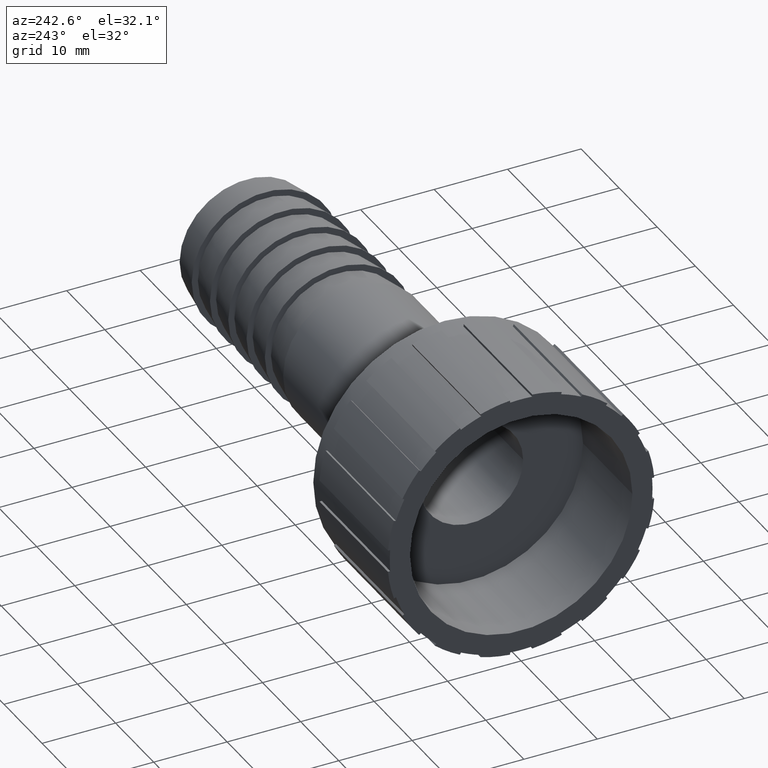
[diagram: clean part render]
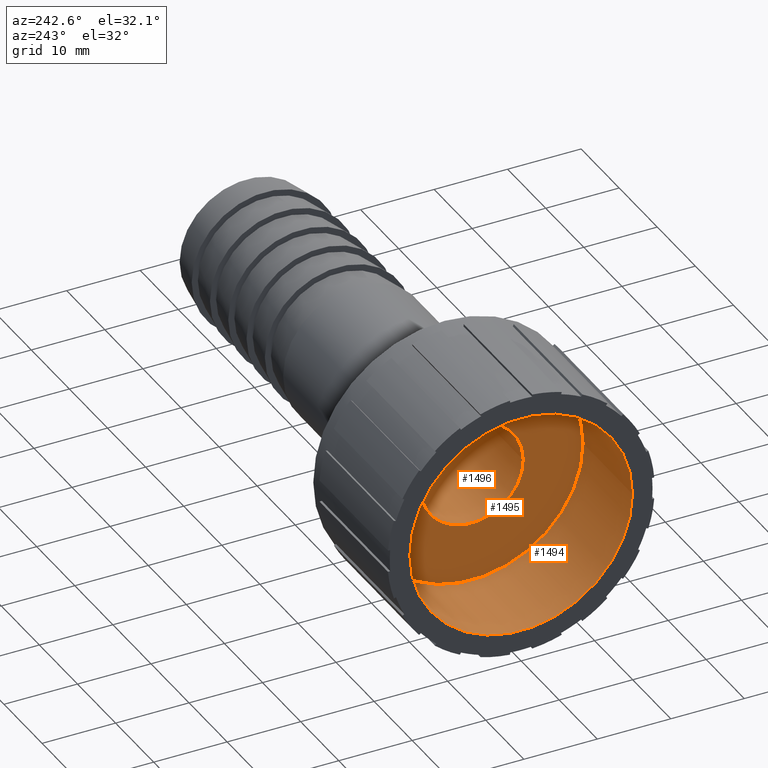
[diagram: same view with one multi-face feature highlighted, each face labeled with its STEP entity id]
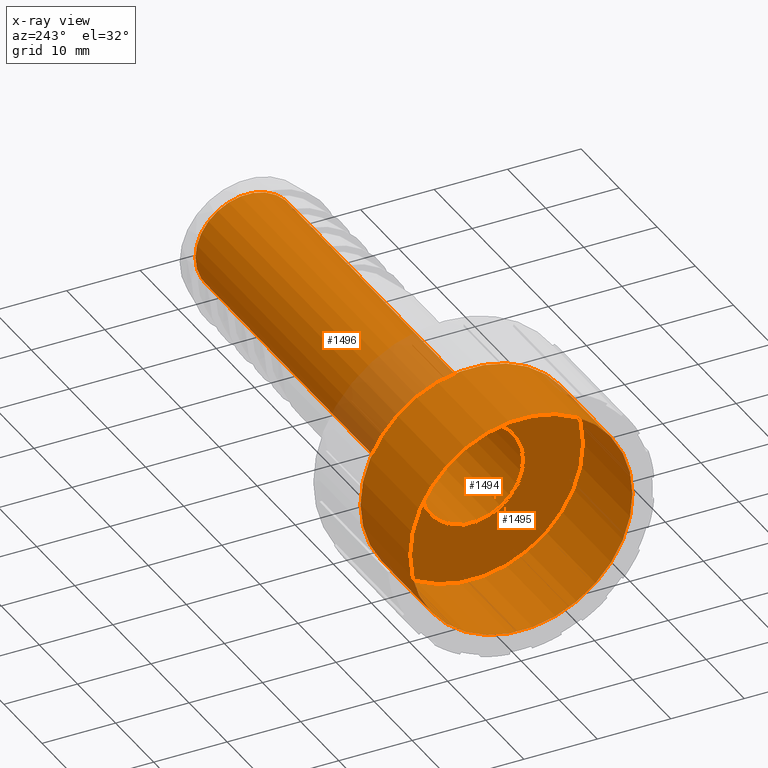
[diagram: x-ray of the same camera — body ghosted, the whole feature saturated]
A machine part, auxiliary view. The highlighted faces form ONE feature: a stepped (counterbored) hole: 2 coaxial cylindrical walls of radii 7 -> 15.1455 mm joined by 1 annular planar shoulder face(s). The faces share edges in the B-rep.
The next image is the same camera in x-ray: the body ghosted and the whole hole feature saturated, so the bore chain is visible through the body.
Their STEP definitions:
[1] entity #1494 (Cylinder):
#39=CYLINDRICAL_SURFACE('',#1648,15.1455);
#46=FACE_BOUND('',#302,.T.);
#94=CIRCLE('',#1575,15.1455);
#130=CIRCLE('',#1649,15.1455);
#213=FACE_OUTER_BOUND('',#301,.T.);
#301=EDGE_LOOP('',(#1337));
#302=EDGE_LOOP('',(#1338));
#713=VERTEX_POINT('',#2453);
#721=VERTEX_POINT('',#2541);
#890=EDGE_CURVE('',#713,#713,#94,.T.);
#932=EDGE_CURVE('',#721,#721,#130,.T.);
#1337=ORIENTED_EDGE('',*,*,#890,.T.);
#1338=ORIENTED_EDGE('',*,*,#932,.F.);
#1494=ADVANCED_FACE('',(#213,#46),#39,.F.);
#1575=AXIS2_PLACEMENT_3D('',#2454,#1929,#1930);
#1648=AXIS2_PLACEMENT_3D('',#2540,#2081,#2082);
#1649=AXIS2_PLACEMENT_3D('',#2542,#2083,#2084);
#1929=DIRECTION('center_axis',(-1.,0.,0.));
#1930=DIRECTION('ref_axis',(0.,0.,1.));
#2081=DIRECTION('center_axis',(-1.,0.,0.));
#2082=DIRECTION('ref_axis',(0.,-1.,0.));
#2083=DIRECTION('center_axis',(-1.,0.,0.));
#2084=DIRECTION('ref_axis',(0.,0.,1.));
#2453=CARTESIAN_POINT('',(0.,-15.1455,0.));
#2454=CARTESIAN_POINT('Origin',(0.,0.,0.));
#2540=CARTESIAN_POINT('Origin',(6.48,0.,0.));
#2541=CARTESIAN_POINT('',(12.96,-15.1455,0.));
#2542=CARTESIAN_POINT('Origin',(12.96,0.,0.));
[2] entity #1496 (Cylinder):
#40=CYLINDRICAL_SURFACE('',#1652,7.);
#48=FACE_BOUND('',#306,.T.);
#131=CIRCLE('',#1651,7.);
#132=CIRCLE('',#1653,7.);
#215=FACE_OUTER_BOUND('',#305,.T.);
#305=EDGE_LOOP('',(#1341));
#306=EDGE_LOOP('',(#1342));
#722=VERTEX_POINT('',#2544);
#723=VERTEX_POINT('',#2547);
#933=EDGE_CURVE('',#722,#722,#131,.T.);
#934=EDGE_CURVE('',#723,#723,#132,.T.);
#1341=ORIENTED_EDGE('',*,*,#933,.T.);
#1342=ORIENTED_EDGE('',*,*,#934,.F.);
#1496=ADVANCED_FACE('',(#215,#48),#40,.F.);
#1651=AXIS2_PLACEMENT_3D('',#2545,#2087,#2088);
#1652=AXIS2_PLACEMENT_3D('',#2546,#2089,#2090);
#1653=AXIS2_PLACEMENT_3D('',#2548,#2091,#2092);
#2087=DIRECTION('center_axis',(-1.,0.,0.));
#2088=DIRECTION('ref_axis',(0.,0.,1.));
#2089=DIRECTION('center_axis',(-1.,0.,0.));
#2090=DIRECTION('ref_axis',(0.,-1.,0.));
#2091=DIRECTION('center_axis',(-1.,0.,0.));
#2092=DIRECTION('ref_axis',(0.,0.,1.));
#2544=CARTESIAN_POINT('',(12.96,-7.,0.));
#2545=CARTESIAN_POINT('Origin',(12.96,0.,0.));
#2546=CARTESIAN_POINT('Origin',(42.48,0.,0.));
#2547=CARTESIAN_POINT('',(72.,-7.,0.));
#2548=CARTESIAN_POINT('Origin',(72.,0.,0.));
[3] entity #1495 (Plane):
#47=FACE_BOUND('',#304,.T.);
#130=CIRCLE('',#1649,15.1455);
#131=CIRCLE('',#1651,7.);
#214=FACE_OUTER_BOUND('',#303,.T.);
#303=EDGE_LOOP('',(#1339));
#304=EDGE_LOOP('',(#1340));
#721=VERTEX_POINT('',#2541);
#722=VERTEX_POINT('',#2544);
#932=EDGE_CURVE('',#721,#721,#130,.T.);
#933=EDGE_CURVE('',#722,#722,#131,.T.);
#1339=ORIENTED_EDGE('',*,*,#932,.T.);
#1340=ORIENTED_EDGE('',*,*,#933,.F.);
#1419=PLANE('',#1650);
#1495=ADVANCED_FACE('',(#214,#47),#1419,.T.);
#1649=AXIS2_PLACEMENT_3D('',#2542,#2083,#2084);
#1650=AXIS2_PLACEMENT_3D('',#2543,#2085,#2086);
#1651=AXIS2_PLACEMENT_3D('',#2545,#2087,#2088);
#2083=DIRECTION('center_axis',(-1.,0.,0.));
#2084=DIRECTION('ref_axis',(0.,0.,1.));
#2085=DIRECTION('center_axis',(-1.,0.,0.));
#2086=DIRECTION('ref_axis',(0.,0.,1.));
#2087=DIRECTION('center_axis',(-1.,0.,0.));
#2088=DIRECTION('ref_axis',(0.,0.,1.));
#2541=CARTESIAN_POINT('',(12.96,-15.1455,0.));
#2542=CARTESIAN_POINT('Origin',(12.96,0.,0.));
#2543=CARTESIAN_POINT('Origin',(12.96,-7.,0.));
#2544=CARTESIAN_POINT('',(12.96,-7.,0.));
#2545=CARTESIAN_POINT('Origin',(12.96,0.,0.));